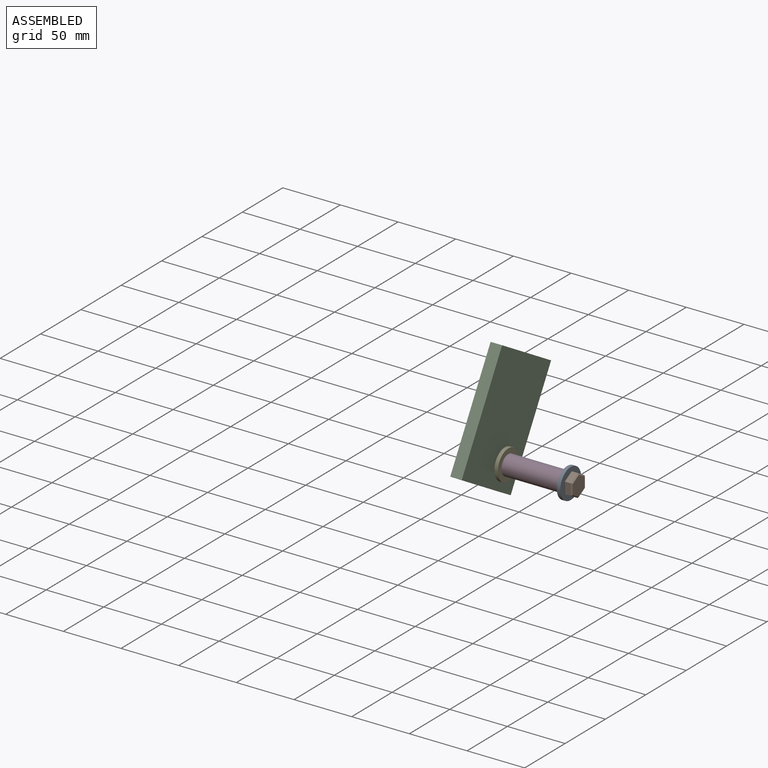
[diagram: assembled view]
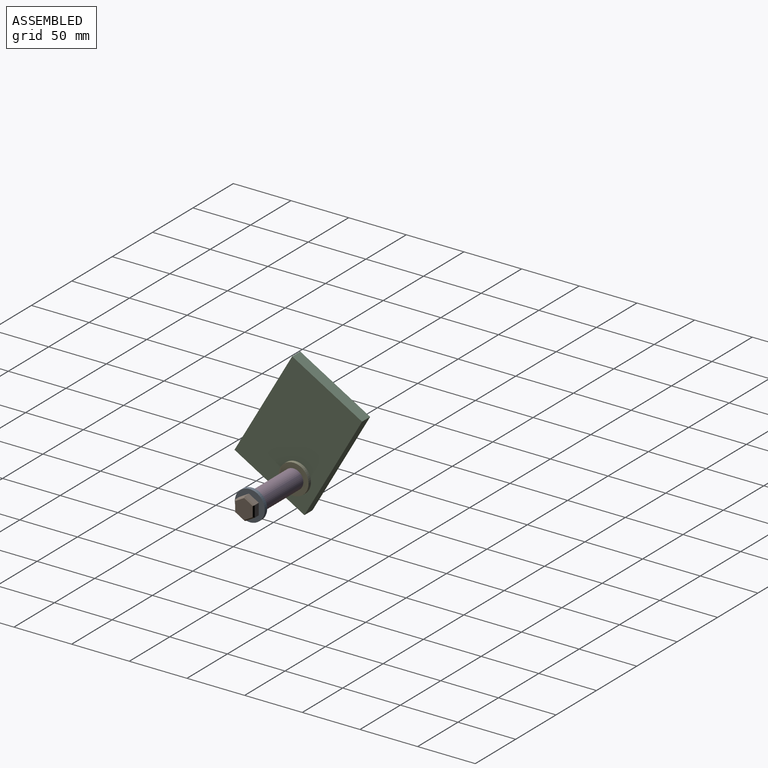
[diagram: assembled view, second angle]
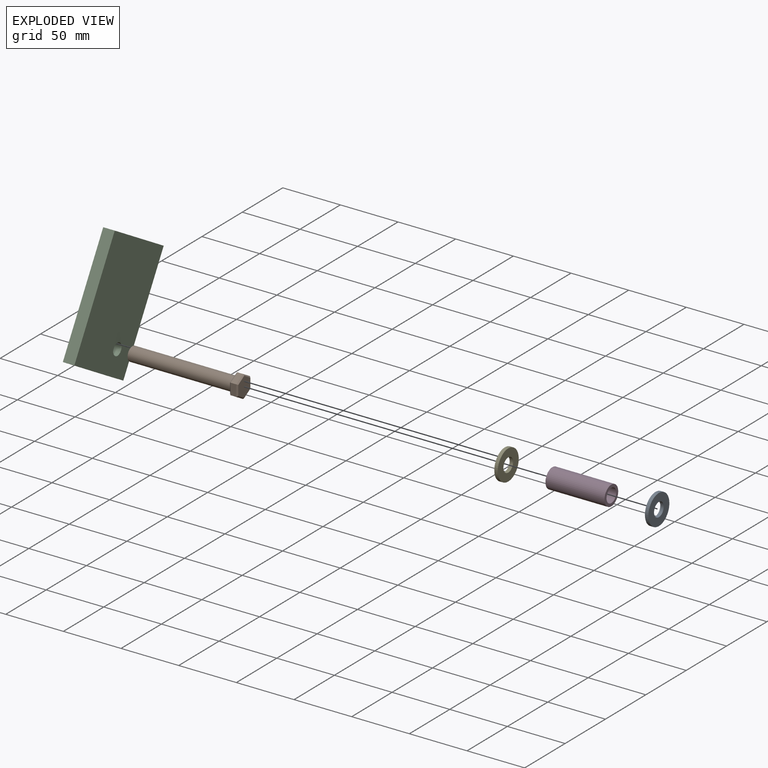
[diagram: exploded view]
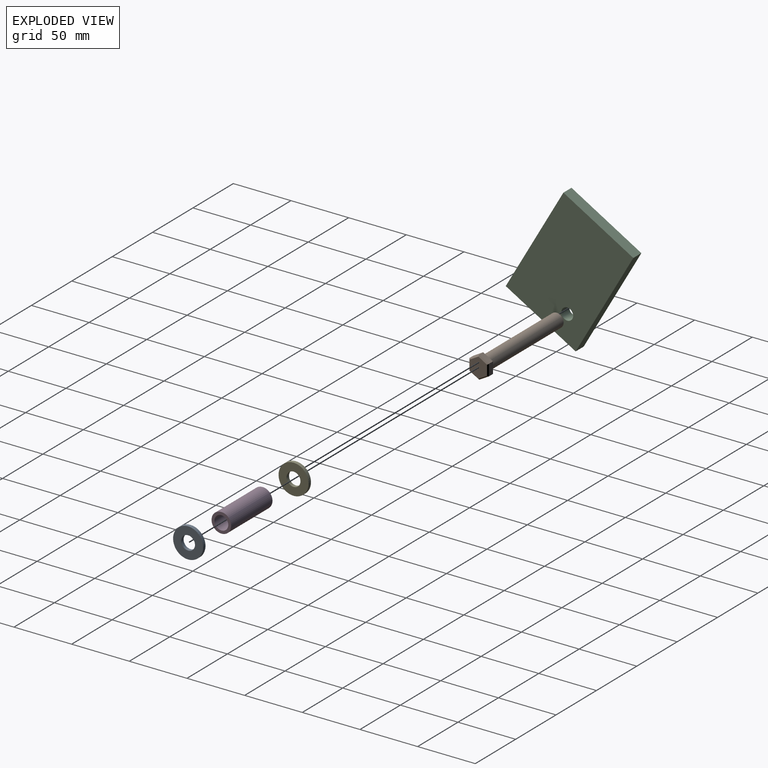
[diagram: exploded view, second angle]
ASSEMBLY  parts=5 mates=4
PART A: 4 faces, bbox 3x26x26 mm
  f0: plane 26x26mm, normal (1,0,0), area 417.8mm2, adj f1,f3
  f1: cylinder r=13mm len=26mm, axis (-1,0,0), area 245mm2, adj f0,f2
  f2: plane 26x26mm, normal (-1,0,0), area 417.8mm2, adj f1,f3
  f3: cylinder r=6mm len=12mm, axis (-1,0,0), area 113.1mm2, adj f0,f2
PART B: 22 faces, bbox 97x19.6x17 mm
  f0: plane 12x12mm, normal (-1,0,0), area 113.1mm2, adj f1
  f1: cylinder r=6mm len=90mm, axis (-1,0,0), area 3392.9mm2, adj f0,f9
  f2: plane 8.5x5mm, normal (0,-0.87,0.5), area 49.1mm2, adj f3,f7,f14,f20
  f3: plane 8.5x5mm, normal (0,-0.87,-0.5), area 49.1mm2, adj f2,f4,f15,f21
  f4: plane 9.82x5mm, normal (0,0,-1), area 49.1mm2, adj f3,f5,f13,f19
  f5: plane 8.5x5mm, normal (0,0.87,-0.5), area 49.1mm2, adj f4,f6,f11,f17
  f6: plane 8.5x5mm, normal (0,0.87,0.5), area 49.1mm2, adj f5,f7,f10,f16
  f7: plane 9.82x5mm, normal (0,0,1), area 49.1mm2, adj f2,f6,f12,f18
  f8: plane 17.32x15mm, normal (1,0,0), area 194.9mm2, adj f16,f17,f18,f19,f20,f21
  f9: plane 17.32x15mm, normal (-1,0,0), area 81.8mm2, adj f1,f10,f11,f12,f13,f14,f15
  f10: plane 8.5x5.49mm, normal (-0.71,0.61,0.35), area 13.1mm2, adj f6,f9,f11,f12
  f11: plane 8.5x5.49mm, normal (-0.71,0.61,-0.35), area 13.1mm2, adj f5,f9,f10,f13
  f12: plane 9.82x1mm, normal (-0.71,0,0.71), area 13.1mm2, adj f7,f9,f10,f14
  f13: plane 9.82x1mm, normal (-0.71,0,-0.71), area 13.1mm2, adj f4,f9,f11,f15
  f14: plane 8.5x5.49mm, normal (-0.71,-0.61,0.35), area 13.1mm2, adj f2,f9,f12,f15
  f15: plane 8.5x5.49mm, normal (-0.71,-0.61,-0.35), area 13.1mm2, adj f3,f9,f13,f14
  f16: plane 8.5x5.49mm, normal (0.71,0.61,0.35), area 13.1mm2, adj f6,f8,f17,f18
  f17: plane 8.5x5.49mm, normal (0.71,0.61,-0.35), area 13.1mm2, adj f5,f8,f16,f19
  f18: plane 9.82x1mm, normal (0.71,0,0.71), area 13.1mm2, adj f7,f8,f16,f20
  f19: plane 9.82x1mm, normal (0.71,0,-0.71), area 13.1mm2, adj f4,f8,f17,f21
  f20: plane 8.5x5.49mm, normal (0.71,-0.61,0.35), area 13.1mm2, adj f2,f8,f18,f21
  f21: plane 8.5x5.49mm, normal (0.71,-0.61,-0.35), area 13.1mm2, adj f3,f8,f19,f20
PART C: 7 faces, bbox 10x70x100 mm
  f0: plane 100x10mm, normal (0,-1,0), area 1000mm2, adj f1,f3,f4,f5
  f1: plane 70x10mm, normal (0,0,-1), area 700mm2, adj f0,f2,f4,f5
  f2: plane 100x10mm, normal (0,1,0), area 1000mm2, adj f1,f3,f4,f5
  f3: plane 70x10mm, normal (0,0,1), area 700mm2, adj f0,f2,f4,f5
  f4: plane 100x70mm, normal (1,0,0), area 6916.7mm2, adj f0,f1,f2,f3,f6
  f5: plane 100x70mm, normal (-1,0,0), area 6916.7mm2, adj f0,f1,f2,f3,f6
  f6: cylinder r=5.15mm len=10.3mm, axis (1,0,0), area 323.6mm2, adj f4,f5
PART D: 4 faces, bbox 51.2x17x17 mm
  f0: cylinder r=8.5mm len=51.2mm, axis (-1,0,0), area 2734.4mm2, adj f1,f3
  f1: plane 17x17mm, normal (-1,0,0), area 113.9mm2, adj f0,f2
  f2: cylinder r=6mm len=51.2mm, axis (-1,0,0), area 1930.2mm2, adj f1,f3
  f3: plane 17x17mm, normal (1,0,0), area 113.9mm2, adj f0,f2
PART E: same geometry as A
PLACE A rot(axis=(-1,0,0),30deg) t=(39.79,7.28,1.24)mm
PLACE B rot(axis=(-1,0,0),30deg) t=(-50.21,7.28,1.24)mm
PLACE C rot(axis=(1,0,0),150deg) t=(-27.41,64.6,60.52)mm
PLACE D rot(axis=(-1,0,0),30deg) t=(-14.41,7.28,1.24)mm
PLACE E rot(axis=(-1,0,0),30deg) t=(-14.41,7.28,1.24)mm
MATE fastened A.f1 <-> D.f0  axis (-1,0,0) through (36.79,7.28,1.24)mm
MATE fastened B.f1 <-> A.f1  axis (-1,0,0) through (39.79,7.28,1.24)mm
MATE fastened E.f1 <-> D.f0  axis (1,0,0) through (-14.41,7.28,1.24)mm
MATE fastened C.f6 <-> E.f1  axis (1,0,0) through (-17.41,7.28,1.24)mm
